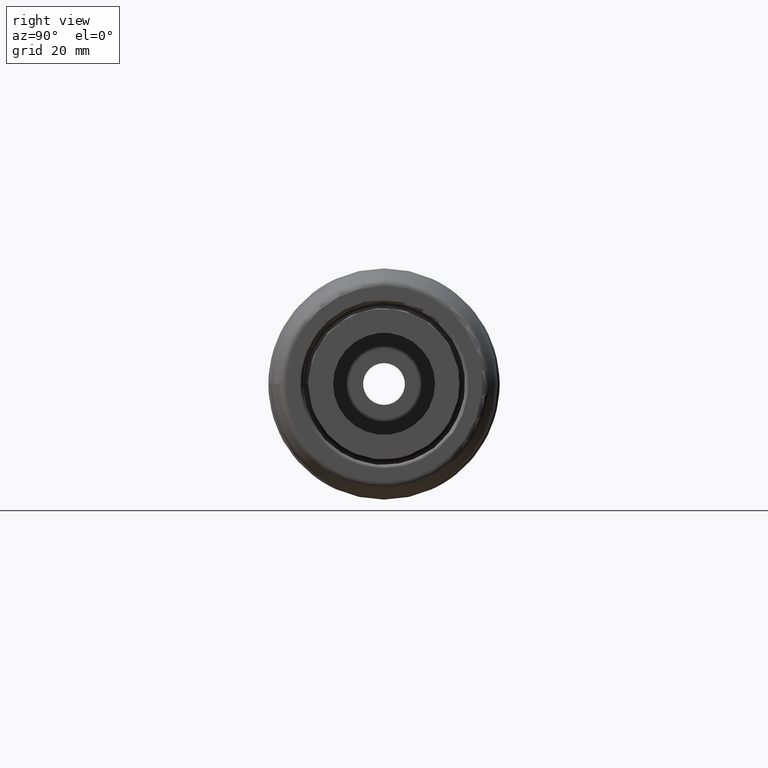
[diagram: clean part render]
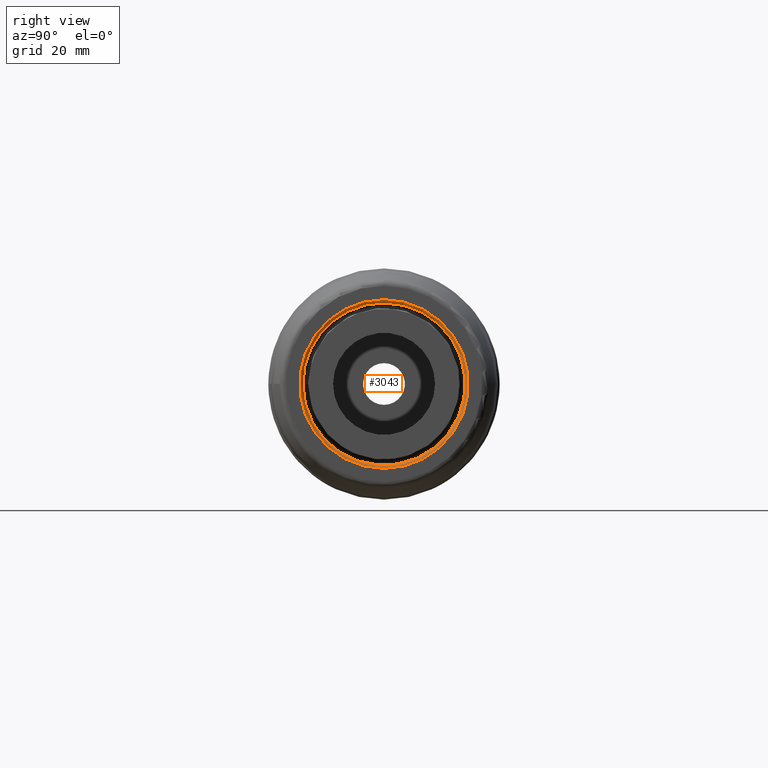
[diagram: same view with one face highlighted and labeled with its STEP entity id]
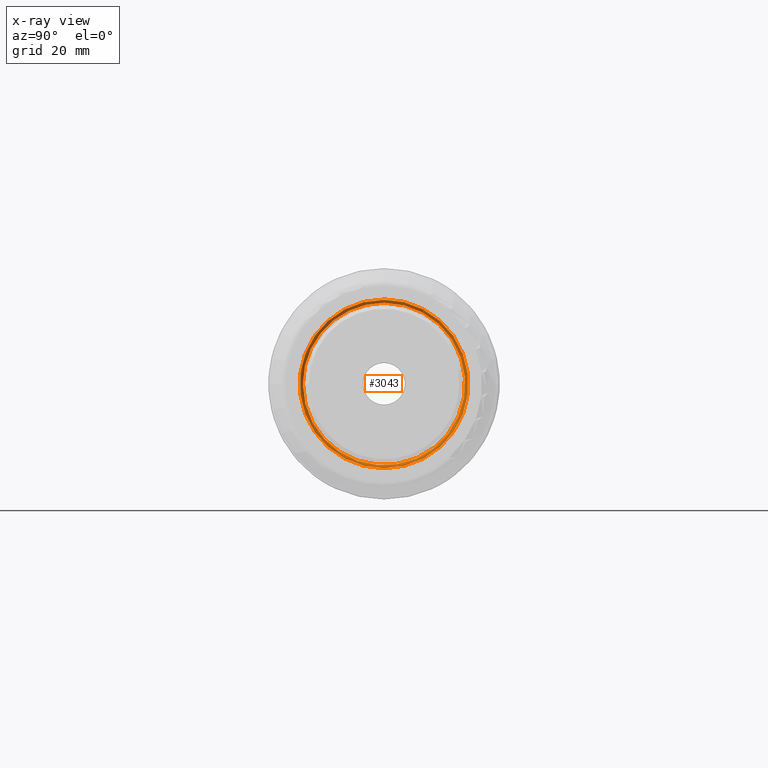
[diagram: x-ray of the same camera — body ghosted, the highlighted face saturated]
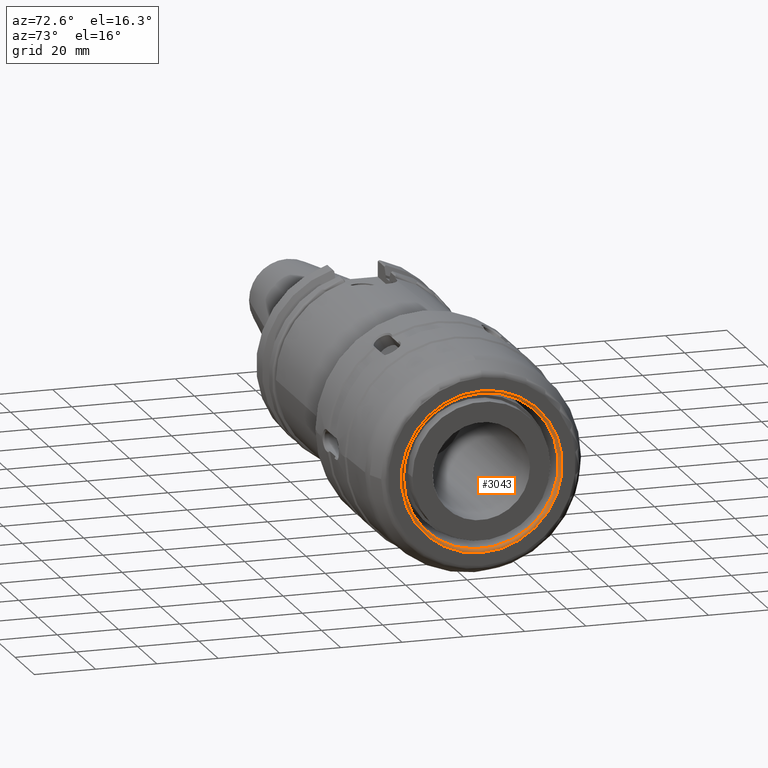
[diagram: same view with one face highlighted and labeled with its STEP entity id]
A machine part, right view. The second image highlights one B-rep face of the part: STEP entity #3043.
The next image is the same camera in x-ray: the body ghosted, the highlighted face saturated — about 0% of this face is hidden behind the body in this view.
A second angle (auxiliary view) of the same face is appended — the face is thin or edge-on in the first view.
In plain terms, the highlighted toroidal blend (fillet) surface has major radius 26.2679 mm and minor (blend) radius 1 mm.
Its self-contained STEP definition (entity closure, byte-faithful):
#93=TOROIDAL_SURFACE('',#3409,26.2678800485097,1.);
#385=FACE_OUTER_BOUND('',#574,.T.);
#574=EDGE_LOOP('',(#2799,#2800,#2801,#2802,#2803));
#688=CIRCLE('',#3371,25.2680284793988);
#689=CIRCLE('',#3372,25.2680284793988);
#709=CIRCLE('',#3402,26.2678800485097);
#714=CIRCLE('',#3410,1.);
#1472=VERTEX_POINT('',#6310);
#1473=VERTEX_POINT('',#6311);
#1490=VERTEX_POINT('',#6365);
#1899=EDGE_CURVE('',#1472,#1473,#688,.T.);
#1900=EDGE_CURVE('',#1473,#1472,#689,.T.);
#1926=EDGE_CURVE('',#1490,#1490,#709,.T.);
#1932=EDGE_CURVE('',#1472,#1490,#714,.T.);
#2799=ORIENTED_EDGE('',*,*,#1899,.T.);
#2800=ORIENTED_EDGE('',*,*,#1900,.T.);
#2801=ORIENTED_EDGE('',*,*,#1932,.T.);
#2802=ORIENTED_EDGE('',*,*,#1926,.T.);
#2803=ORIENTED_EDGE('',*,*,#1932,.F.);
#3043=ADVANCED_FACE('',(#385),#93,.T.);
#3371=AXIS2_PLACEMENT_3D('',#6312,#4131,#4132);
#3372=AXIS2_PLACEMENT_3D('',#6313,#4133,#4134);
#3402=AXIS2_PLACEMENT_3D('',#6366,#4199,#4200);
#3409=AXIS2_PLACEMENT_3D('',#6377,#4214,#4215);
#3410=AXIS2_PLACEMENT_3D('',#6378,#4216,#4217);
#4131=DIRECTION('center_axis',(-1.,0.,0.));
#4132=DIRECTION('ref_axis',(0.,-1.,3.06161699786838E-17));
#4133=DIRECTION('center_axis',(-1.,0.,0.));
#4134=DIRECTION('ref_axis',(0.,-1.,3.06161699786838E-17));
#4199=DIRECTION('center_axis',(1.,0.,0.));
#4200=DIRECTION('ref_axis',(0.,-1.,1.83697019872103E-16));
#4214=DIRECTION('center_axis',(1.,0.,0.));
#4215=DIRECTION('ref_axis',(0.,0.,-1.));
#4216=DIRECTION('center_axis',(0.,-1.,-1.22464679914735E-16));
#4217=DIRECTION('ref_axis',(0.,-1.22464679914735E-16,1.));
#6310=CARTESIAN_POINT('',(59.9827709621154,-3.09444101980599E-15,25.2680284793988));
#6311=CARTESIAN_POINT('',(59.9827709621154,-25.2680284793988,-3.09444101980599E-15));
#6312=CARTESIAN_POINT('Origin',(59.9827709621154,0.,-3.86805127475749E-15));
#6313=CARTESIAN_POINT('Origin',(59.9827709621154,0.,-3.86805127475749E-15));
#6365=CARTESIAN_POINT('',(61.,-3.21688752217941E-15,26.2678800485097));
#6366=CARTESIAN_POINT('Origin',(61.,0.,0.));
#6377=CARTESIAN_POINT('Origin',(60.,0.,0.));
#6378=CARTESIAN_POINT('Origin',(60.,-3.21688752217941E-15,26.2678800485097));